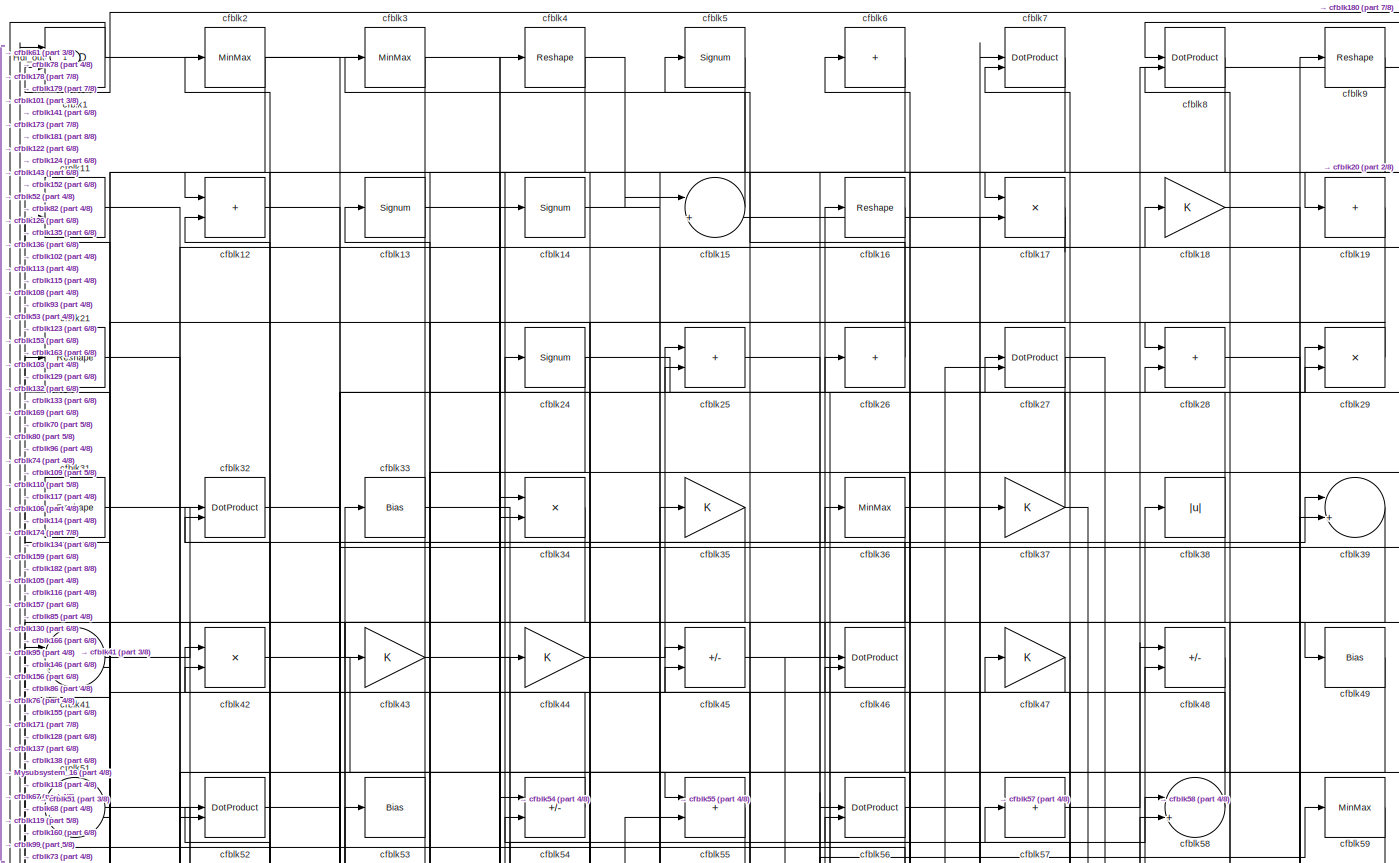
[diagram: root canvas - part 1/8, full width, top band]
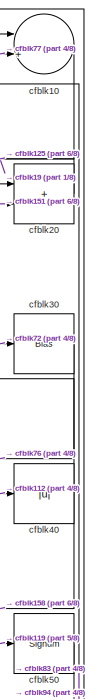
[diagram: root canvas - part 2/8, top right region]
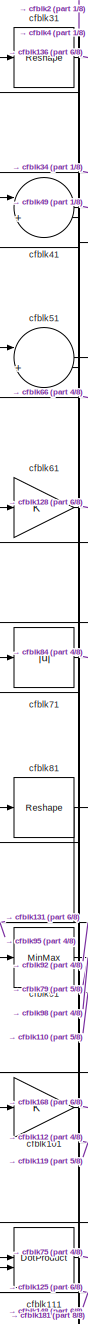
[diagram: root canvas - part 3/8, middle left region]
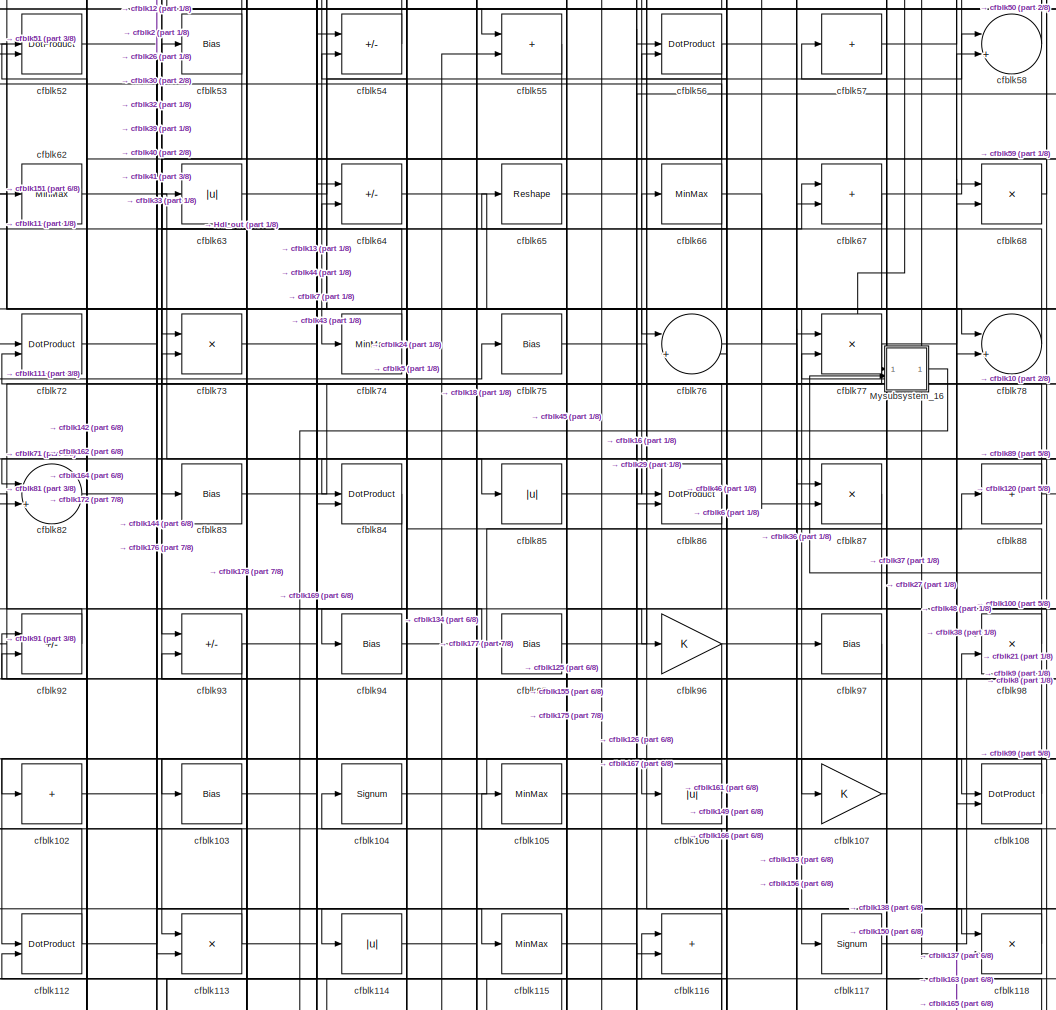
[diagram: root canvas - part 4/8, central region]
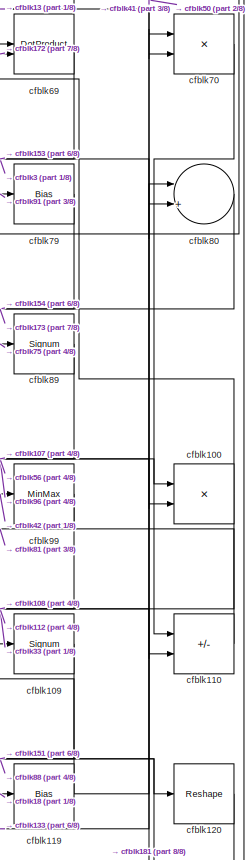
[diagram: root canvas - part 5/8, middle right region]
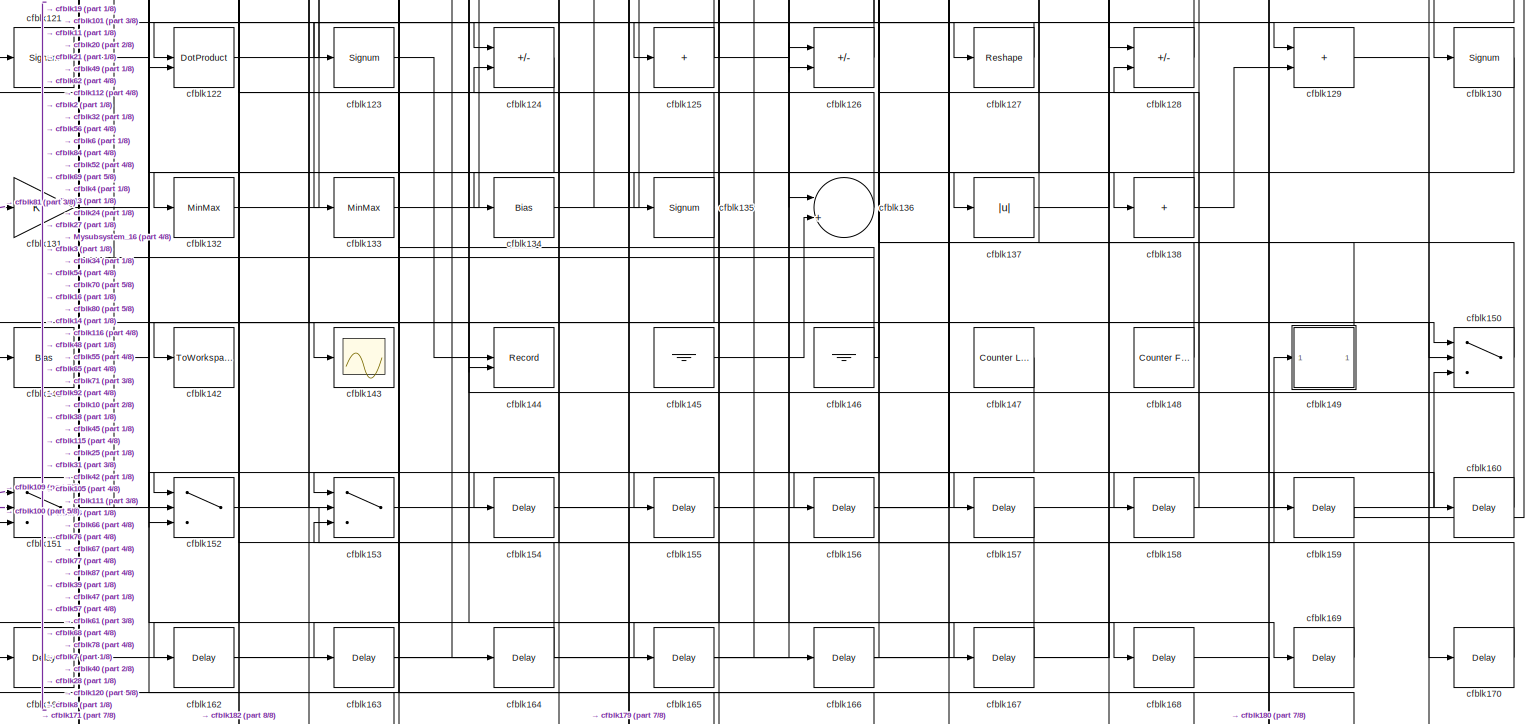
[diagram: root canvas - part 6/8, full width, bottom band]
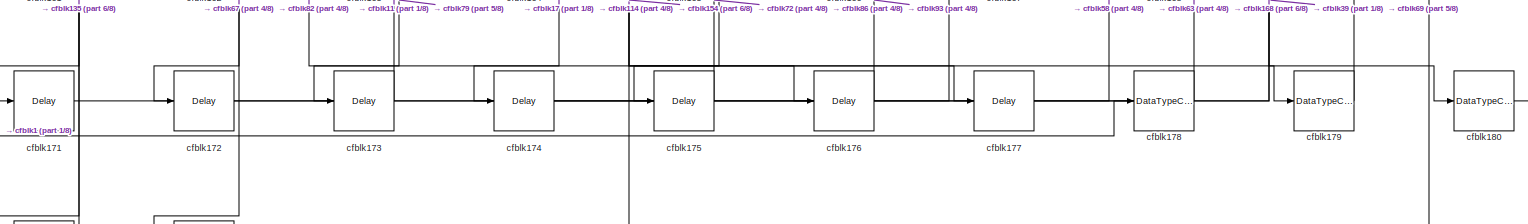
[diagram: root canvas - part 7/8, full width, bottom band]
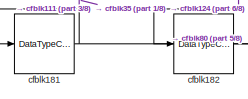
[diagram: root canvas - part 8/8, bottom left region]
MODEL slx_589857a2fdd8
KIND model
CONFIG AbsTol = auto
CONFIG EnableMultiTasking = off
CONFIG FixedStep = auto
CONFIG MaxStep = auto
CONFIG MinStep = auto
CONFIG RelTol = 1e-3
CONFIG SampleTimeConstraint = Unconstrained
CONFIG SolverName = VariableStepAuto
CONFIG StartTime = 0.0
CONFIG StopTime = 10.0
BLOCK [Outport] Hdl_out
  OutDataTypeStr = uint8
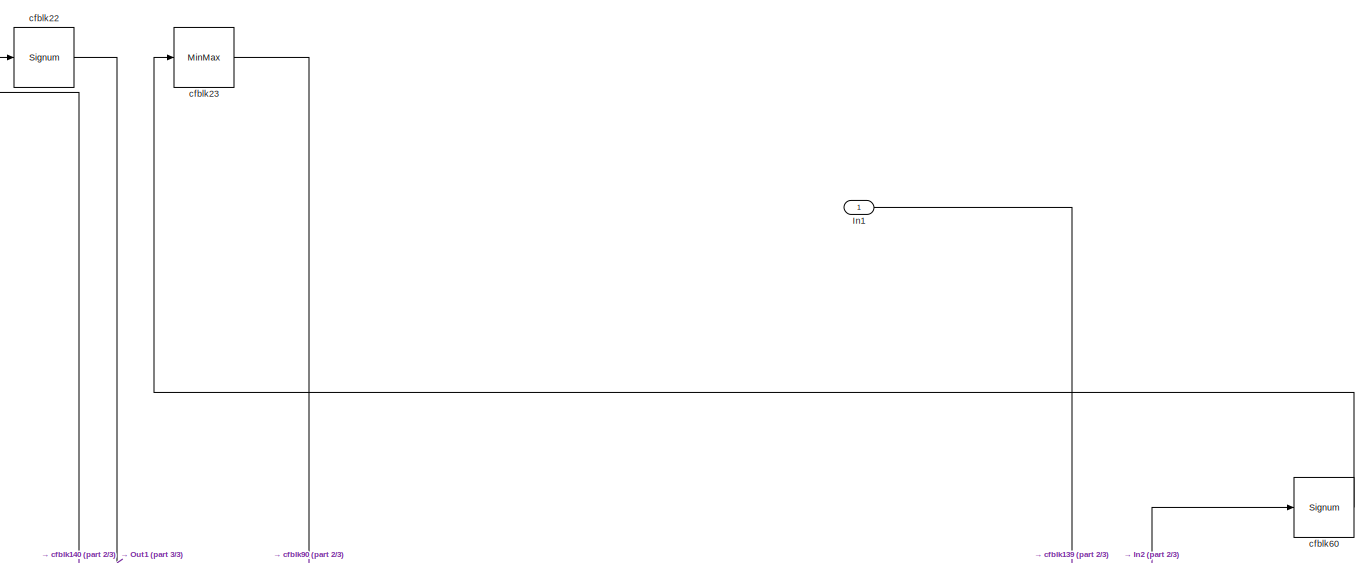
[diagram: Mysubsystem_16 - part 1/3, full width, top band]
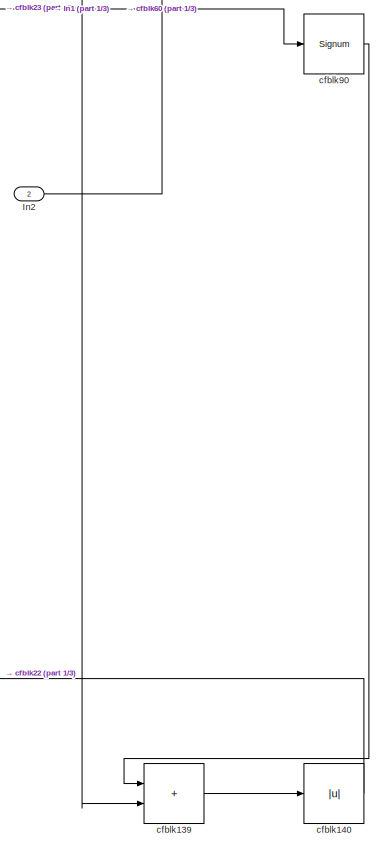
[diagram: Mysubsystem_16 - part 2/3, middle right region]
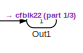
[diagram: Mysubsystem_16 - part 3/3, bottom left region]
BLOCK [SubSystem] Mysubsystem_16
  RTWFcnName = Mysubsystem_16
  RTWFcnNameOpts = User specified
  RTWFileNameOpts = Use function name
  RTWSystemCode = Reusable function
  TreatAsAtomicUnit = on
BLOCK [Inport] Mysubsystem_16/In1
BLOCK [Inport] Mysubsystem_16/In2
  Port = 2
BLOCK [Outport] Mysubsystem_16/Out1
BLOCK [Sum] Mysubsystem_16/cfblk139
  IconShape = rectangular
BLOCK [Abs] Mysubsystem_16/cfblk140
  SaturateOnIntegerOverflow = off
BLOCK [Signum] Mysubsystem_16/cfblk22
BLOCK [MinMax] Mysubsystem_16/cfblk23
BLOCK [Signum] Mysubsystem_16/cfblk60
BLOCK [Signum] Mysubsystem_16/cfblk90
BLOCK [Logic] cfblk1
  AllPortsSameDT = off
  OutDataTypeStr = boolean
BLOCK [Sum] cfblk10
  Inputs = |++
  OutDataTypeStr = uint8
BLOCK [Product] cfblk100
  Inputs = */
  OutDataTypeStr = uint8
  RndMeth = Zero
  SaturateOnIntegerOverflow = on
BLOCK [Gain] cfblk101
  OutDataTypeStr = uint8
BLOCK [Sum] cfblk102
  IconShape = rectangular
  Inputs = +
  OutDataTypeStr = uint8
BLOCK [Bias] cfblk103
  Bias = 0.0
  SaturateOnIntegerOverflow = off
BLOCK [Signum] cfblk104
BLOCK [MinMax] cfblk105
  OutDataTypeStr = uint8
BLOCK [Abs] cfblk106
  OutDataTypeStr = uint8
  SaturateOnIntegerOverflow = off
BLOCK [Gain] cfblk107
  OutDataTypeStr = uint8
BLOCK [DotProduct] cfblk108
  OutDataTypeStr = uint8
BLOCK [Signum] cfblk109
BLOCK [Sum] cfblk11
  IconShape = rectangular
  OutDataTypeStr = uint8
BLOCK [Sum] cfblk110
  IconShape = rectangular
  Inputs = +-
  OutDataTypeStr = uint8
BLOCK [DotProduct] cfblk111
  OutDataTypeStr = uint8
BLOCK [DotProduct] cfblk112
  OutDataTypeStr = uint8
BLOCK [Product] cfblk113
  Inputs = */
  OutDataTypeStr = uint8
  RndMeth = Zero
  SaturateOnIntegerOverflow = on
BLOCK [Abs] cfblk114
  OutDataTypeStr = uint8
  SaturateOnIntegerOverflow = off
BLOCK [MinMax] cfblk115
  OutDataTypeStr = uint8
BLOCK [Sum] cfblk116
  IconShape = rectangular
  OutDataTypeStr = uint8
BLOCK [Signum] cfblk117
BLOCK [Product] cfblk118
  Inputs = */
  OutDataTypeStr = uint8
  RndMeth = Zero
  SaturateOnIntegerOverflow = on
BLOCK [Bias] cfblk119
  Bias = 0.0
  SaturateOnIntegerOverflow = off
BLOCK [Sum] cfblk12
  IconShape = rectangular
  OutDataTypeStr = uint8
BLOCK [Reshape] cfblk120
BLOCK [Signum] cfblk121
BLOCK [DotProduct] cfblk122
  OutDataTypeStr = uint8
BLOCK [Signum] cfblk123
BLOCK [Sum] cfblk124
  IconShape = rectangular
  Inputs = +-
  OutDataTypeStr = uint8
BLOCK [Sum] cfblk125
  IconShape = rectangular
  Inputs = +
  OutDataTypeStr = uint8
BLOCK [Sum] cfblk126
  IconShape = rectangular
  Inputs = +-
  OutDataTypeStr = uint8
BLOCK [Reshape] cfblk127
BLOCK [Sum] cfblk128
  IconShape = rectangular
  Inputs = +-
  OutDataTypeStr = uint8
BLOCK [Sum] cfblk129
  IconShape = rectangular
  OutDataTypeStr = uint8
BLOCK [Signum] cfblk13
BLOCK [Signum] cfblk130
BLOCK [Gain] cfblk131
  OutDataTypeStr = uint8
BLOCK [MinMax] cfblk132
  OutDataTypeStr = uint8
BLOCK [MinMax] cfblk133
  OutDataTypeStr = uint8
BLOCK [Bias] cfblk134
  Bias = 0.0
  SaturateOnIntegerOverflow = off
BLOCK [Signum] cfblk135
BLOCK [Sum] cfblk136
  Inputs = |++
  OutDataTypeStr = uint8
BLOCK [Abs] cfblk137
  OutDataTypeStr = uint8
  SaturateOnIntegerOverflow = off
BLOCK [Sum] cfblk138
  IconShape = rectangular
  Inputs = +
  OutDataTypeStr = uint8
BLOCK [Signum] cfblk14
BLOCK [Bias] cfblk141
  Bias = 0.0
  SaturateOnIntegerOverflow = off
BLOCK [ToWorkspace] cfblk142
  MaxDataPoints = inf
  SampleTime = -1
  SaveFormat = Timeseries
  VariableName = simout
BLOCK [Scope] cfblk143
  Floating = off
  NumInputPorts = 1
  ScopeSpecificationString = Simulink.scopes.TimeScopeBlockCfg('CurrentConfiguration', extmgr.ConfigurationSet(extmgr.Configuration('Core','General UI',true),extmgr.Configuration('Core','Source UI',true),extmgr.Configuration('Sources','WiredSimulink',true,'DataLoggingVariableName','ScopeData2','DataLoggingSaveFormat','Array','DataLoggingLimitDataPoints',true,'DataLoggingDecimation','1'),extmgr.Configuration('Visuals','Time Do...<+868ch>
BLOCK [Record] cfblk144
  CompatibilityTag = XY
  FileSettingsInternal = {"entries":[{"content":{"excelSettings":{"content":{},"type":"Streamout.ExcelSettings"}},"type":"Streamout.FileSettingStorage","uuid":""}],"packageUris":["http:\/\/schema.mathworks.com\/mf0\/streamout_blocks\/R2020a"],"version":"1.0"}
  Layout = [1 1]
  SignalsInternal = {"entries":[{"content":{"signals":[{"content":{"blockPath":[],"dimensions":[1],"domain":"","lineColor":"#a2142f","plots":[1],"port":1,"signalID":29041,"signalName":"cfblk123"},"type":"RecordBlkView.Signal","uuid":""},{"content":{"blockPath":[],"dimensions":[1],"domain":"","lineColor":"#139fff","plots":[1],"port":2,"signalID":29044,"signalName":"cfblk52"},"type":"RecordBlkView.Signal","uuid":""}]},...<+143ch>
  VisualizationBindings = {"xyplotplugin":{"info":[{"series":[{"bindingParametersList":[{"parameter":"X-Axis","signalID":29041,"signalName":"cfblk123"},{"parameter":"Y-Axis","signalID":29044,"signalName":"cfblk52"}],"seriesID":3320}],"subplotID":1}]}}
  st = -1
BLOCK [Ground] cfblk145
BLOCK [Ground] cfblk146
BLOCK [Reference] cfblk147  REF=hdlsllib/Sources/Counter
Limited
  SourceBlock = hdlsllib/Sources/Counter\nLimited
  SourceType = Counter Limited
BLOCK [Reference] cfblk148  REF=hdlsllib/Sources/Counter
Free-Running
  SourceBlock = hdlsllib/Sources/Counter\nFree-Running
  SourceType = Counter Free-Running
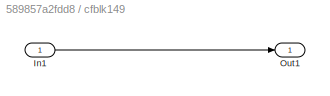
BLOCK [SubSystem] cfblk149
  LibrarySourceBlock = hdlsllib/Ports &\nSubsystems/Subsystem
BLOCK [Inport] cfblk149/In1
BLOCK [Outport] cfblk149/Out1
BLOCK [Sum] cfblk15
  Inputs = |++
  OutDataTypeStr = uint8
BLOCK [Switch] cfblk150
  InputSameDT = off
  OutDataTypeStr = uint8
  SaturateOnIntegerOverflow = off
BLOCK [Switch] cfblk151
  InputSameDT = off
  OutDataTypeStr = uint8
  SaturateOnIntegerOverflow = off
BLOCK [Switch] cfblk152
  InputSameDT = off
  OutDataTypeStr = uint8
  SaturateOnIntegerOverflow = off
BLOCK [Switch] cfblk153
  InputSameDT = off
  OutDataTypeStr = uint8
  SaturateOnIntegerOverflow = off
BLOCK [Delay] cfblk154
  InputPortMap = u0
  SampleTime = 1
BLOCK [Delay] cfblk155
  InputPortMap = u0
  SampleTime = 1
BLOCK [Delay] cfblk156
  InputPortMap = u0
  SampleTime = 1
BLOCK [Delay] cfblk157
  InputPortMap = u0
  SampleTime = 1
BLOCK [Delay] cfblk158
  InputPortMap = u0
  SampleTime = 1
BLOCK [Delay] cfblk159
  InputPortMap = u0
  SampleTime = 1
BLOCK [Reshape] cfblk16
BLOCK [Delay] cfblk160
  InputPortMap = u0
  SampleTime = 1
BLOCK [Delay] cfblk161
  InputPortMap = u0
  SampleTime = 1
BLOCK [Delay] cfblk162
  InputPortMap = u0
  SampleTime = 1
BLOCK [Delay] cfblk163
  InputPortMap = u0
  SampleTime = 1
BLOCK [Delay] cfblk164
  InputPortMap = u0
  SampleTime = 1
BLOCK [Delay] cfblk165
  InputPortMap = u0
  SampleTime = 1
BLOCK [Delay] cfblk166
  InputPortMap = u0
  SampleTime = 1
BLOCK [Delay] cfblk167
  InputPortMap = u0
  SampleTime = 1
BLOCK [Delay] cfblk168
  InputPortMap = u0
  SampleTime = 1
BLOCK [Delay] cfblk169
  InputPortMap = u0
  SampleTime = 1
BLOCK [Product] cfblk17
  Inputs = */
  OutDataTypeStr = uint8
  RndMeth = Zero
  SaturateOnIntegerOverflow = on
BLOCK [Delay] cfblk170
  InputPortMap = u0
  SampleTime = 1
BLOCK [Delay] cfblk171
  InputPortMap = u0
  SampleTime = 1
BLOCK [Delay] cfblk172
  InputPortMap = u0
  SampleTime = 1
BLOCK [Delay] cfblk173
  InputPortMap = u0
  SampleTime = 1
BLOCK [Delay] cfblk174
  InputPortMap = u0
  SampleTime = 1
BLOCK [Delay] cfblk175
  InputPortMap = u0
  SampleTime = 1
BLOCK [Delay] cfblk176
  InputPortMap = u0
  SampleTime = 1
BLOCK [Delay] cfblk177
  InputPortMap = u0
  SampleTime = 1
BLOCK [DataTypeConversion] cfblk178
  OutDataTypeStr = uint8
  RndMeth = Floor
  SaturateOnIntegerOverflow = off
BLOCK [DataTypeConversion] cfblk179
  OutDataTypeStr = uint8
  RndMeth = Floor
  SaturateOnIntegerOverflow = off
BLOCK [Gain] cfblk18
  OutDataTypeStr = uint8
BLOCK [DataTypeConversion] cfblk180
  OutDataTypeStr = uint8
  RndMeth = Floor
  SaturateOnIntegerOverflow = off
BLOCK [DataTypeConversion] cfblk181
  OutDataTypeStr = uint8
  RndMeth = Floor
  SaturateOnIntegerOverflow = off
BLOCK [DataTypeConversion] cfblk182
  OutDataTypeStr = uint8
  RndMeth = Floor
  SaturateOnIntegerOverflow = off
BLOCK [Sum] cfblk19
  IconShape = rectangular
  Inputs = +
  OutDataTypeStr = uint8
BLOCK [MinMax] cfblk2
  OutDataTypeStr = uint8
BLOCK [Sum] cfblk20
  IconShape = rectangular
  OutDataTypeStr = uint8
BLOCK [Reshape] cfblk21
BLOCK [Signum] cfblk24
BLOCK [Sum] cfblk25
  IconShape = rectangular
  OutDataTypeStr = uint8
BLOCK [Sum] cfblk26
  IconShape = rectangular
  Inputs = +
  OutDataTypeStr = uint8
BLOCK [DotProduct] cfblk27
  OutDataTypeStr = uint8
BLOCK [Sum] cfblk28
  IconShape = rectangular
  OutDataTypeStr = uint8
BLOCK [Product] cfblk29
  Inputs = */
  OutDataTypeStr = uint8
  RndMeth = Zero
  SaturateOnIntegerOverflow = on
BLOCK [MinMax] cfblk3
  OutDataTypeStr = uint8
BLOCK [Bias] cfblk30
  Bias = 0.0
  SaturateOnIntegerOverflow = off
BLOCK [Reshape] cfblk31
BLOCK [DotProduct] cfblk32
  OutDataTypeStr = uint8
BLOCK [Bias] cfblk33
  Bias = 0.0
  SaturateOnIntegerOverflow = off
BLOCK [Product] cfblk34
  Inputs = */
  OutDataTypeStr = uint8
  RndMeth = Zero
  SaturateOnIntegerOverflow = on
BLOCK [Gain] cfblk35
  OutDataTypeStr = uint8
BLOCK [MinMax] cfblk36
  OutDataTypeStr = uint8
BLOCK [Gain] cfblk37
  OutDataTypeStr = uint8
BLOCK [Abs] cfblk38
  OutDataTypeStr = uint8
  SaturateOnIntegerOverflow = off
BLOCK [Sum] cfblk39
  Inputs = |++
  OutDataTypeStr = uint8
BLOCK [Reshape] cfblk4
BLOCK [Abs] cfblk40
  OutDataTypeStr = uint8
  SaturateOnIntegerOverflow = off
BLOCK [Sum] cfblk41
  Inputs = |++
  OutDataTypeStr = uint8
BLOCK [Product] cfblk42
  Inputs = */
  OutDataTypeStr = uint8
  RndMeth = Zero
  SaturateOnIntegerOverflow = on
BLOCK [Gain] cfblk43
  OutDataTypeStr = uint8
BLOCK [Gain] cfblk44
  OutDataTypeStr = uint8
BLOCK [Sum] cfblk45
  IconShape = rectangular
  Inputs = +-
  OutDataTypeStr = uint8
BLOCK [DotProduct] cfblk46
  OutDataTypeStr = uint8
BLOCK [Gain] cfblk47
  OutDataTypeStr = uint8
BLOCK [Sum] cfblk48
  IconShape = rectangular
  Inputs = +-
  OutDataTypeStr = uint8
BLOCK [Bias] cfblk49
  Bias = 0.0
  SaturateOnIntegerOverflow = off
BLOCK [Signum] cfblk5
BLOCK [Signum] cfblk50
BLOCK [Sum] cfblk51
  Inputs = |++
  OutDataTypeStr = uint8
BLOCK [DotProduct] cfblk52
  OutDataTypeStr = uint8
BLOCK [Bias] cfblk53
  Bias = 0.0
  SaturateOnIntegerOverflow = off
BLOCK [Sum] cfblk54
  IconShape = rectangular
  Inputs = +-
  OutDataTypeStr = uint8
BLOCK [Sum] cfblk55
  IconShape = rectangular
  OutDataTypeStr = uint8
BLOCK [DotProduct] cfblk56
  OutDataTypeStr = uint8
BLOCK [Sum] cfblk57
  IconShape = rectangular
  Inputs = +
  OutDataTypeStr = uint8
BLOCK [Sum] cfblk58
  Inputs = |++
  OutDataTypeStr = uint8
BLOCK [MinMax] cfblk59
  OutDataTypeStr = uint8
BLOCK [Sum] cfblk6
  IconShape = rectangular
  Inputs = +
  OutDataTypeStr = uint8
BLOCK [Gain] cfblk61
  OutDataTypeStr = uint8
BLOCK [MinMax] cfblk62
  OutDataTypeStr = uint8
BLOCK [Abs] cfblk63
  OutDataTypeStr = uint8
  SaturateOnIntegerOverflow = off
BLOCK [Sum] cfblk64
  IconShape = rectangular
  Inputs = +-
  OutDataTypeStr = uint8
BLOCK [Reshape] cfblk65
BLOCK [MinMax] cfblk66
  OutDataTypeStr = uint8
BLOCK [Sum] cfblk67
  IconShape = rectangular
  OutDataTypeStr = uint8
BLOCK [Product] cfblk68
  Inputs = */
  OutDataTypeStr = uint8
  RndMeth = Zero
  SaturateOnIntegerOverflow = on
BLOCK [DotProduct] cfblk69
  OutDataTypeStr = uint8
BLOCK [DotProduct] cfblk7
  OutDataTypeStr = uint8
BLOCK [Product] cfblk70
  Inputs = */
  OutDataTypeStr = uint8
  RndMeth = Zero
  SaturateOnIntegerOverflow = on
BLOCK [Abs] cfblk71
  OutDataTypeStr = uint8
  SaturateOnIntegerOverflow = off
BLOCK [DotProduct] cfblk72
  OutDataTypeStr = uint8
BLOCK [Product] cfblk73
  Inputs = */
  OutDataTypeStr = uint8
  RndMeth = Zero
  SaturateOnIntegerOverflow = on
BLOCK [MinMax] cfblk74
  OutDataTypeStr = uint8
BLOCK [Bias] cfblk75
  Bias = 0.0
  SaturateOnIntegerOverflow = off
BLOCK [Sum] cfblk76
  Inputs = |++
  OutDataTypeStr = uint8
BLOCK [Product] cfblk77
  Inputs = */
  OutDataTypeStr = uint8
  RndMeth = Zero
  SaturateOnIntegerOverflow = on
BLOCK [Sum] cfblk78
  Inputs = |++
  OutDataTypeStr = uint8
BLOCK [Bias] cfblk79
  Bias = 0.0
  SaturateOnIntegerOverflow = off
BLOCK [DotProduct] cfblk8
  OutDataTypeStr = uint8
BLOCK [Sum] cfblk80
  Inputs = |++
  OutDataTypeStr = uint8
BLOCK [Reshape] cfblk81
BLOCK [Sum] cfblk82
  Inputs = |++
  OutDataTypeStr = uint8
BLOCK [Bias] cfblk83
  Bias = 0.0
  SaturateOnIntegerOverflow = off
BLOCK [DotProduct] cfblk84
  OutDataTypeStr = uint8
BLOCK [Abs] cfblk85
  OutDataTypeStr = uint8
  SaturateOnIntegerOverflow = off
BLOCK [DotProduct] cfblk86
  OutDataTypeStr = uint8
BLOCK [Product] cfblk87
  Inputs = */
  OutDataTypeStr = uint8
  RndMeth = Zero
  SaturateOnIntegerOverflow = on
BLOCK [Sum] cfblk88
  IconShape = rectangular
  Inputs = +
  OutDataTypeStr = uint8
BLOCK [Signum] cfblk89
BLOCK [Reshape] cfblk9
BLOCK [MinMax] cfblk91
  OutDataTypeStr = uint8
BLOCK [Sum] cfblk92
  IconShape = rectangular
  Inputs = +-
  OutDataTypeStr = uint8
BLOCK [Sum] cfblk93
  IconShape = rectangular
  Inputs = +-
  OutDataTypeStr = uint8
BLOCK [Bias] cfblk94
  Bias = 0.0
  SaturateOnIntegerOverflow = off
BLOCK [Bias] cfblk95
  Bias = 0.0
  SaturateOnIntegerOverflow = off
BLOCK [Gain] cfblk96
  OutDataTypeStr = uint8
BLOCK [Bias] cfblk97
  Bias = 0.0
  SaturateOnIntegerOverflow = off
BLOCK [Product] cfblk98
  Inputs = */
  OutDataTypeStr = uint8
  RndMeth = Zero
  SaturateOnIntegerOverflow = on
BLOCK [MinMax] cfblk99
  OutDataTypeStr = uint8
LINE Mysubsystem_16/In1:1 -> Mysubsystem_16/cfblk139:2
LINE Mysubsystem_16/In2:1 -> Mysubsystem_16/cfblk60:1
LINE Mysubsystem_16/cfblk139:1 -> Mysubsystem_16/cfblk140:1
LINE Mysubsystem_16/cfblk140:1 -> Mysubsystem_16/cfblk22:1
LINE Mysubsystem_16/cfblk22:1 -> Mysubsystem_16/Out1:1
LINE Mysubsystem_16/cfblk23:1 -> Mysubsystem_16/cfblk90:1
LINE Mysubsystem_16/cfblk60:1 -> Mysubsystem_16/cfblk23:1
LINE Mysubsystem_16/cfblk90:1 -> Mysubsystem_16/cfblk139:1
LINE Mysubsystem_16:1 -> cfblk164:1
NET cfblk100:1 -> cfblk108:2, cfblk151:2, cfblk69:1
LINE cfblk101:1 -> cfblk168:1
NET cfblk102:1 -> cfblk118:1, cfblk26:1
LINE cfblk103:1 -> cfblk36:1
LINE cfblk104:1 -> cfblk106:1
LINE cfblk105:1 -> cfblk59:1
LINE cfblk106:1 -> cfblk24:1
LINE cfblk107:1 -> cfblk77:2
LINE cfblk108:1 -> cfblk33:1
LINE cfblk109:1 -> cfblk151:1
LINE cfblk10:1 -> cfblk125:1
LINE cfblk110:1 -> cfblk81:1
LINE cfblk111:1 -> cfblk75:1
NET cfblk112:1 -> cfblk40:1, cfblk41:1
NET cfblk113:1 -> cfblk67:1, cfblk92:1
NET cfblk114:1 -> cfblk177:1, cfblk18:1
NET cfblk115:1 -> cfblk167:1, cfblk45:1
NET cfblk116:1 -> cfblk104:1, cfblk161:1
LINE cfblk117:1 -> cfblk9:1
LINE cfblk118:1 -> cfblk6:1
NET cfblk119:1 -> cfblk41:2, cfblk50:1
NET cfblk11:1 -> cfblk143:1, cfblk52:2, cfblk82:2
LINE cfblk120:1 -> cfblk133:1
LINE cfblk121:1 -> cfblk138:1
LINE cfblk122:1 -> cfblk14:1
LINE cfblk123:1 -> cfblk144:1
LINE cfblk124:1 -> cfblk182:1
NET cfblk125:1 -> cfblk127:1, cfblk65:1, cfblk71:1, cfblk92:2
LINE cfblk126:1 -> cfblk42:1
LINE cfblk127:1 -> cfblk122:1
LINE cfblk128:1 -> cfblk7:2
LINE cfblk129:1 -> cfblk170:1
LINE cfblk12:1 -> cfblk85:1
LINE cfblk130:1 -> cfblk165:1
LINE cfblk131:1 -> cfblk150:2
LINE cfblk132:1 -> cfblk4:1
NET cfblk133:1 -> cfblk45:2, cfblk70:1
NET cfblk134:1 -> cfblk116:1, cfblk48:2, cfblk55:2
NET cfblk135:1 -> cfblk171:1, cfblk2:1
LINE cfblk136:1 -> cfblk32:1
LINE cfblk137:1 -> cfblk68:1
NET cfblk138:1 -> cfblk129:2, cfblk47:1, cfblk66:1
NET cfblk13:1 -> cfblk70:2, cfblk96:1
LINE cfblk141:1 -> cfblk150:1
LINE cfblk145:1 -> cfblk136:2
NET cfblk146:1 -> cfblk121:1, cfblk13:1, cfblk46:2
NET cfblk147:1 -> cfblk152:1, cfblk152:3
LINE cfblk148:1 -> cfblk111:1
LINE cfblk149/In1:1 -> cfblk149/Out1:1
LINE cfblk149:1 -> cfblk105:1
NET cfblk14:1 -> cfblk159:1, cfblk17:1
LINE cfblk150:1 -> cfblk57:1
NET cfblk151:1 -> cfblk20:2, cfblk62:1
LINE cfblk152:1 -> cfblk149:1
NET cfblk153:1 -> cfblk150:3, cfblk87:1
LINE cfblk154:1 -> cfblk179:1
LINE cfblk155:1 -> cfblk7:1
LINE cfblk156:1 -> cfblk77:1
LINE cfblk157:1 -> cfblk153:3
LINE cfblk158:1 -> cfblk128:2
LINE cfblk159:1 -> cfblk8:1
LINE cfblk15:1 -> cfblk3:1
LINE cfblk160:1 -> cfblk34:1
LINE cfblk161:1 -> cfblk67:2
LINE cfblk162:1 -> cfblk126:1
LINE cfblk163:1 -> cfblk68:2
LINE cfblk164:1 -> cfblk112:2
LINE cfblk165:1 -> cfblk78:2
LINE cfblk166:1 -> cfblk56:2
LINE cfblk167:1 -> cfblk76:2
LINE cfblk168:1 -> cfblk180:1
LINE cfblk169:1 -> cfblk54:1
NET cfblk16:1 -> cfblk134:1, cfblk163:1
LINE cfblk170:1 -> cfblk124:2
LINE cfblk171:1 -> cfblk17:2
LINE cfblk172:1 -> cfblk69:2
LINE cfblk173:1 -> cfblk11:2
LINE cfblk174:1 -> cfblk39:2
LINE cfblk175:1 -> cfblk72:1
LINE cfblk176:1 -> cfblk93:2
LINE cfblk177:1 -> cfblk58:2
LINE cfblk178:1 -> cfblk63:1
LINE cfblk179:1 -> cfblk1:1
NET cfblk17:1 -> cfblk15:2, cfblk174:1, cfblk46:1
LINE cfblk180:1 -> cfblk1:2
NET cfblk181:1 -> cfblk111:2, cfblk80:1
LINE cfblk182:1 -> cfblk35:1
LINE cfblk18:1 -> cfblk119:1
LINE cfblk19:1 -> cfblk141:1
LINE cfblk1:1 -> cfblk178:1
LINE cfblk20:1 -> cfblk19:1
LINE cfblk21:1 -> cfblk124:1
NET cfblk24:1 -> cfblk123:1, cfblk29:2
LINE cfblk25:1 -> cfblk157:1
LINE cfblk26:1 -> cfblk5:1
NET cfblk27:1 -> cfblk118:2, cfblk153:1
LINE cfblk28:1 -> cfblk160:1
LINE cfblk29:1 -> cfblk28:1
NET cfblk2:1 -> cfblk12:1, cfblk51:2, cfblk55:1
LINE cfblk30:1 -> cfblk76:1
LINE cfblk31:1 -> cfblk136:1
NET cfblk32:1 -> cfblk115:1, cfblk27:1
NET cfblk33:1 -> cfblk109:1, cfblk110:2
LINE cfblk34:1 -> cfblk61:1
LINE cfblk35:1 -> cfblk181:1
NET cfblk36:1 -> cfblk108:1, cfblk93:1
NET cfblk37:1 -> Mysubsystem_16:1, cfblk25:2
NET cfblk38:1 -> cfblk135:1, cfblk28:2
LINE cfblk39:1 -> cfblk137:1
NET cfblk3:1 -> cfblk129:1, cfblk169:1, cfblk80:2
NET cfblk40:1 -> cfblk158:1, cfblk20:1
LINE cfblk41:1 -> cfblk49:1
LINE cfblk42:1 -> cfblk99:1
LINE cfblk43:1 -> cfblk117:1
LINE cfblk44:1 -> cfblk25:1
NET cfblk45:1 -> cfblk130:1, cfblk166:1
NET cfblk46:1 -> cfblk113:2, cfblk12:2
LINE cfblk47:1 -> cfblk42:2
NET cfblk48:1 -> cfblk152:2, cfblk156:1
LINE cfblk49:1 -> cfblk122:2
NET cfblk4:1 -> cfblk101:1, cfblk15:1
LINE cfblk50:1 -> cfblk94:1
LINE cfblk51:1 -> cfblk98:1
NET cfblk52:1 -> cfblk144:2, cfblk39:1
NET cfblk53:1 -> Hdl_out:1, cfblk83:1
LINE cfblk54:1 -> cfblk32:2
LINE cfblk55:1 -> cfblk84:1
NET cfblk56:1 -> cfblk100:2, cfblk142:1
LINE cfblk57:1 -> cfblk48:1
LINE cfblk58:1 -> cfblk21:1
LINE cfblk59:1 -> cfblk73:1
LINE cfblk5:1 -> cfblk114:1
LINE cfblk61:1 -> cfblk128:1
LINE cfblk62:1 -> cfblk126:2
LINE cfblk63:1 -> cfblk58:1
LINE cfblk64:1 -> cfblk78:1
LINE cfblk65:1 -> cfblk56:1
NET cfblk66:1 -> cfblk51:1, cfblk82:1, cfblk86:2, cfblk87:2
NET cfblk67:1 -> cfblk172:1, cfblk38:1
LINE cfblk68:1 -> cfblk8:2
NET cfblk69:1 -> cfblk151:3, cfblk153:2
LINE cfblk6:1 -> cfblk132:1
LINE cfblk70:1 -> cfblk110:1
NET cfblk71:1 -> cfblk31:1, cfblk84:2
NET cfblk72:1 -> cfblk30:1, cfblk64:2
LINE cfblk73:1 -> cfblk44:1
LINE cfblk74:1 -> cfblk53:1
LINE cfblk75:1 -> cfblk89:1
NET cfblk76:1 -> cfblk27:2, cfblk37:1, cfblk97:1
NET cfblk77:1 -> cfblk10:2, cfblk72:2
LINE cfblk78:1 -> cfblk11:1
LINE cfblk79:1 -> cfblk173:1
NET cfblk7:1 -> cfblk43:1, cfblk74:1
LINE cfblk80:1 -> cfblk154:1
NET cfblk81:1 -> cfblk131:1, cfblk95:1
LINE cfblk82:1 -> cfblk176:1
LINE cfblk83:1 -> cfblk10:1
LINE cfblk84:1 -> cfblk162:1
LINE cfblk85:1 -> cfblk16:1
NET cfblk86:1 -> cfblk175:1, cfblk73:2
LINE cfblk87:1 -> cfblk155:1
NET cfblk88:1 -> cfblk120:1, cfblk52:1
LINE cfblk89:1 -> cfblk107:1
NET cfblk8:1 -> cfblk34:2, cfblk86:1
NET cfblk91:1 -> cfblk79:1, cfblk98:2
LINE cfblk92:1 -> cfblk91:1
NET cfblk93:1 -> cfblk102:1, cfblk64:1
LINE cfblk94:1 -> cfblk88:1
LINE cfblk95:1 -> cfblk29:1
NET cfblk96:1 -> cfblk100:1, cfblk113:1
LINE cfblk97:1 -> cfblk103:1
NET cfblk98:1 -> Mysubsystem_16:2, cfblk54:2
LINE cfblk99:1 -> cfblk112:1
LINE cfblk9:1 -> cfblk116:2
note: NET lines group one-source signal fan-out (src -> all destinations, sorted); 1:1 wires keep LINE
